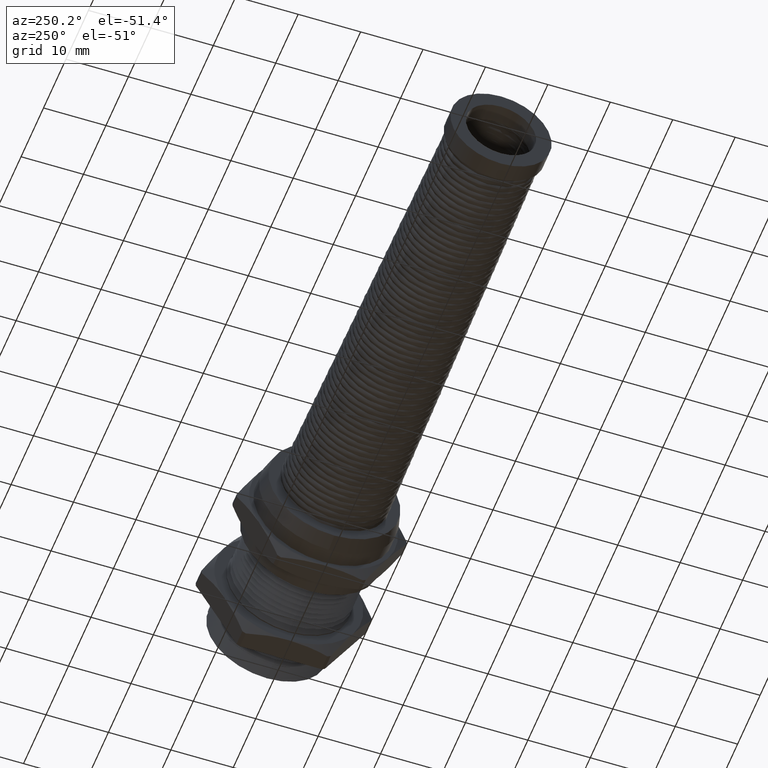
[diagram: clean part render]
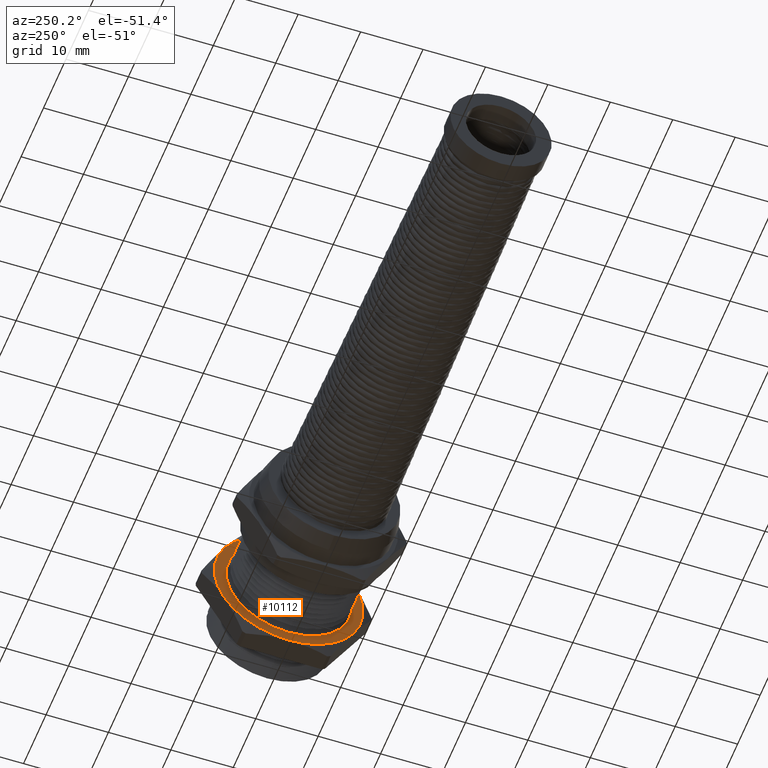
[diagram: same view with one face highlighted and labeled with its STEP entity id]
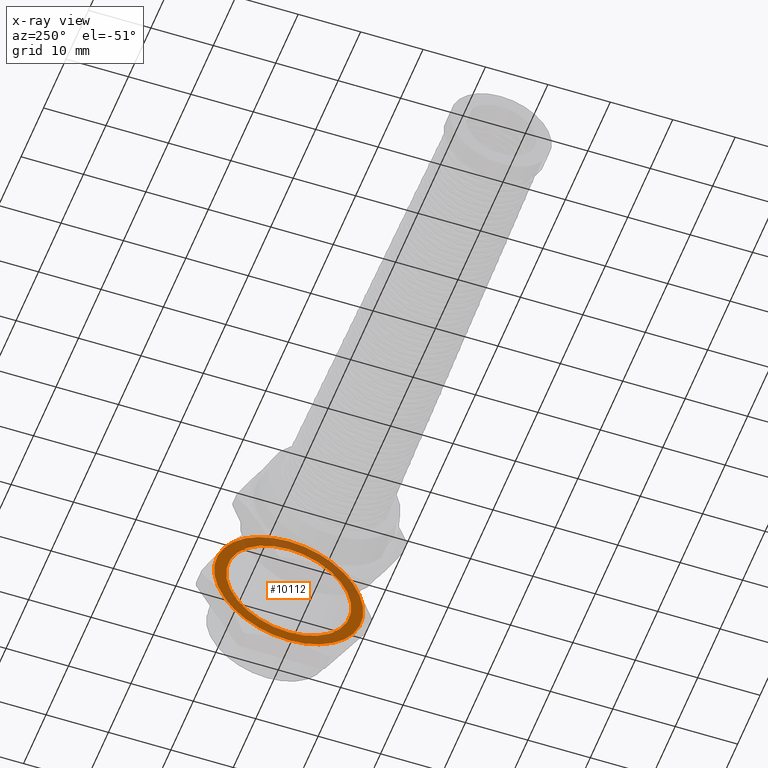
[diagram: x-ray of the same camera — body ghosted, the highlighted face saturated]
A machine part, auxiliary view. The second image highlights one B-rep face of the part: STEP entity #10112.
The next image is the same camera in x-ray: the body ghosted, the highlighted face saturated — about 33% of this face is hidden behind the body in this view.
In plain terms, the highlighted planar face has unit normal (1, 0, 0).
Its self-contained STEP definition (entity closure, byte-faithful):
#9714 = DIRECTION ( 'NONE',  ( 0.0000000000000000000, 0.0000000000000000000, 1.000000000000000000 ) ) ;
#9715 = DIRECTION ( 'NONE',  ( -1.000000000000000000, 0.0000000000000000000, 0.0000000000000000000 ) ) ;
#9716 = CARTESIAN_POINT ( 'NONE',  ( 0.2089999999999999400, 0.0000000000000000000, 0.0000000000000000000 ) ) ;
#9717 = AXIS2_PLACEMENT_3D ( 'NONE', #9716, #9715, #9714 ) ;
#9718 = CIRCLE ( 'NONE', #9717, 0.4699999999999999700 ) ;
#9719 = DIRECTION ( 'NONE',  ( 0.0000000000000000000, 0.0000000000000000000, 1.000000000000000000 ) ) ;
#9720 = DIRECTION ( 'NONE',  ( -1.000000000000000000, 0.0000000000000000000, 0.0000000000000000000 ) ) ;
#9721 = CARTESIAN_POINT ( 'NONE',  ( 0.2089999999999999400, 0.0000000000000000000, 0.0000000000000000000 ) ) ;
#9722 = AXIS2_PLACEMENT_3D ( 'NONE', #9721, #9720, #9719 ) ;
#9723 = CIRCLE ( 'NONE', #9722, 0.4699999999999999700 ) ;
#9724 = CARTESIAN_POINT ( 'NONE',  ( 0.2089999999999999400, 0.4070319397786861200, 0.2350000000000001000 ) ) ;
#10011 = EDGE_CURVE ( 'NONE', #10452, #10451, #11082, .T. ) ;
#10088 = EDGE_LOOP ( 'NONE', ( #10089, #10093, #10096, #10099, #10102, #31853 ) ) ;
#10089 = ORIENTED_EDGE ( 'NONE', *, *, #10090, .T. ) ;
#10090 = EDGE_CURVE ( 'NONE', #10091, #10092, #11242, .T. ) ;
#10091 = VERTEX_POINT ( 'NONE', #11238 ) ;
#10092 = VERTEX_POINT ( 'NONE', #11237 ) ;
#10093 = ORIENTED_EDGE ( 'NONE', *, *, #10094, .T. ) ;
#10094 = EDGE_CURVE ( 'NONE', #10092, #10095, #11298, .T. ) ;
#10095 = VERTEX_POINT ( 'NONE', #11294 ) ;
#10096 = ORIENTED_EDGE ( 'NONE', *, *, #10097, .T. ) ;
#10097 = EDGE_CURVE ( 'NONE', #10095, #10098, #11293, .T. ) ;
#10098 = VERTEX_POINT ( 'NONE', #11288 ) ;
#10099 = ORIENTED_EDGE ( 'NONE', *, *, #10100, .T. ) ;
#10100 = EDGE_CURVE ( 'NONE', #10098, #10101, #11287, .T. ) ;
#10101 = VERTEX_POINT ( 'NONE', #11282 ) ;
#10102 = ORIENTED_EDGE ( 'NONE', *, *, #31863, .T. ) ;
#10112 = ADVANCED_FACE ( 'NONE', ( #11324, #11323 ), #11322, .F. ) ;
#10113 = EDGE_LOOP ( 'NONE', ( #10114, #10115 ) ) ;
#10114 = ORIENTED_EDGE ( 'NONE', *, *, #10450, .F. ) ;
#10115 = ORIENTED_EDGE ( 'NONE', *, *, #10011, .F. ) ;
#10450 = EDGE_CURVE ( 'NONE', #10451, #10452, #11759, .T. ) ;
#10451 = VERTEX_POINT ( 'NONE', #11755 ) ;
#10452 = VERTEX_POINT ( 'NONE', #11754 ) ;
#11078 = DIRECTION ( 'NONE',  ( 0.0000000000000000000, 0.0000000000000000000, 1.000000000000000000 ) ) ;
#11079 = DIRECTION ( 'NONE',  ( -1.000000000000000000, 0.0000000000000000000, 0.0000000000000000000 ) ) ;
#11080 = CARTESIAN_POINT ( 'NONE',  ( 0.2089999999999998800, 0.0000000000000000000, 0.0000000000000000000 ) ) ;
#11081 = AXIS2_PLACEMENT_3D ( 'NONE', #11080, #11079, #11078 ) ;
#11082 = CIRCLE ( 'NONE', #11081, 0.3950000000000000200 ) ;
#11236 = CARTESIAN_POINT ( 'NONE',  ( 0.2089999999999999400, 0.0000000000000000000, 0.0000000000000000000 ) ) ;
#11237 = CARTESIAN_POINT ( 'NONE',  ( 0.2089999999999999400, 0.0000000000000000000, -0.4699999999999999200 ) ) ;
#11238 = CARTESIAN_POINT ( 'NONE',  ( 0.2089999999999999400, 0.4070319397786860100, -0.2349999999999999900 ) ) ;
#11239 = DIRECTION ( 'NONE',  ( 0.0000000000000000000, 0.0000000000000000000, 1.000000000000000000 ) ) ;
#11240 = DIRECTION ( 'NONE',  ( -1.000000000000000000, 0.0000000000000000000, 0.0000000000000000000 ) ) ;
#11241 = AXIS2_PLACEMENT_3D ( 'NONE', #11247, #11240, #11239 ) ;
#11242 = CIRCLE ( 'NONE', #11241, 0.4699999999999999700 ) ;
#11247 = CARTESIAN_POINT ( 'NONE',  ( 0.2089999999999999400, 0.0000000000000000000, 0.0000000000000000000 ) ) ;
#11282 = CARTESIAN_POINT ( 'NONE',  ( 0.2089999999999999400, 0.0000000000000000000, 0.4699999999999999200 ) ) ;
#11283 = DIRECTION ( 'NONE',  ( 0.0000000000000000000, 0.0000000000000000000, 1.000000000000000000 ) ) ;
#11284 = DIRECTION ( 'NONE',  ( -1.000000000000000000, 0.0000000000000000000, 0.0000000000000000000 ) ) ;
#11285 = CARTESIAN_POINT ( 'NONE',  ( 0.2089999999999999400, 0.0000000000000000000, 0.0000000000000000000 ) ) ;
#11286 = AXIS2_PLACEMENT_3D ( 'NONE', #11285, #11284, #11283 ) ;
#11287 = CIRCLE ( 'NONE', #11286, 0.4699999999999999700 ) ;
#11288 = CARTESIAN_POINT ( 'NONE',  ( 0.2089999999999999400, -0.4070319397786861200, 0.2350000000000001000 ) ) ;
#11289 = DIRECTION ( 'NONE',  ( 0.0000000000000000000, 0.0000000000000000000, 1.000000000000000000 ) ) ;
#11290 = DIRECTION ( 'NONE',  ( -1.000000000000000000, 0.0000000000000000000, 0.0000000000000000000 ) ) ;
#11291 = CARTESIAN_POINT ( 'NONE',  ( 0.2089999999999999400, 0.0000000000000000000, 0.0000000000000000000 ) ) ;
#11292 = AXIS2_PLACEMENT_3D ( 'NONE', #11291, #11290, #11289 ) ;
#11293 = CIRCLE ( 'NONE', #11292, 0.4699999999999999700 ) ;
#11294 = CARTESIAN_POINT ( 'NONE',  ( 0.2089999999999999400, -0.4070319397786861800, -0.2350000000000001000 ) ) ;
#11295 = DIRECTION ( 'NONE',  ( 0.0000000000000000000, 0.0000000000000000000, 1.000000000000000000 ) ) ;
#11296 = DIRECTION ( 'NONE',  ( -1.000000000000000000, 0.0000000000000000000, 0.0000000000000000000 ) ) ;
#11297 = AXIS2_PLACEMENT_3D ( 'NONE', #11236, #11296, #11295 ) ;
#11298 = CIRCLE ( 'NONE', #11297, 0.4699999999999999700 ) ;
#11318 = DIRECTION ( 'NONE',  ( 0.0000000000000000000, 0.0000000000000000000, -1.000000000000000000 ) ) ;
#11319 = DIRECTION ( 'NONE',  ( 1.000000000000000000, 0.0000000000000000000, 0.0000000000000000000 ) ) ;
#11320 = CARTESIAN_POINT ( 'NONE',  ( 0.2089999999999999400, 0.3950000000000000200, 0.0000000000000000000 ) ) ;
#11321 = AXIS2_PLACEMENT_3D ( 'NONE', #11320, #11319, #11318 ) ;
#11322 = PLANE ( 'NONE',  #11321 ) ;
#11323 = FACE_OUTER_BOUND ( 'NONE', #10088, .T. ) ;
#11324 = FACE_BOUND ( 'NONE', #10113, .T. ) ;
#11754 = CARTESIAN_POINT ( 'NONE',  ( 0.2089999999999998800, 4.837354856632045600E-017, -0.3950000000000000200 ) ) ;
#11755 = CARTESIAN_POINT ( 'NONE',  ( 0.2089999999999998800, 0.0000000000000000000, 0.3950000000000000200 ) ) ;
#11756 = DIRECTION ( 'NONE',  ( 0.0000000000000000000, 0.0000000000000000000, 1.000000000000000000 ) ) ;
#11757 = DIRECTION ( 'NONE',  ( -1.000000000000000000, 0.0000000000000000000, 0.0000000000000000000 ) ) ;
#11758 = AXIS2_PLACEMENT_3D ( 'NONE', #11765, #11757, #11756 ) ;
#11759 = CIRCLE ( 'NONE', #11758, 0.3950000000000000200 ) ;
#11765 = CARTESIAN_POINT ( 'NONE',  ( 0.2089999999999998800, 0.0000000000000000000, 0.0000000000000000000 ) ) ;
#31853 = ORIENTED_EDGE ( 'NONE', *, *, #31862, .T. ) ;
#31860 = VERTEX_POINT ( 'NONE', #9724 ) ;
#31862 = EDGE_CURVE ( 'NONE', #31860, #10091, #9723, .T. ) ;
#31863 = EDGE_CURVE ( 'NONE', #10101, #31860, #9718, .T. ) ;